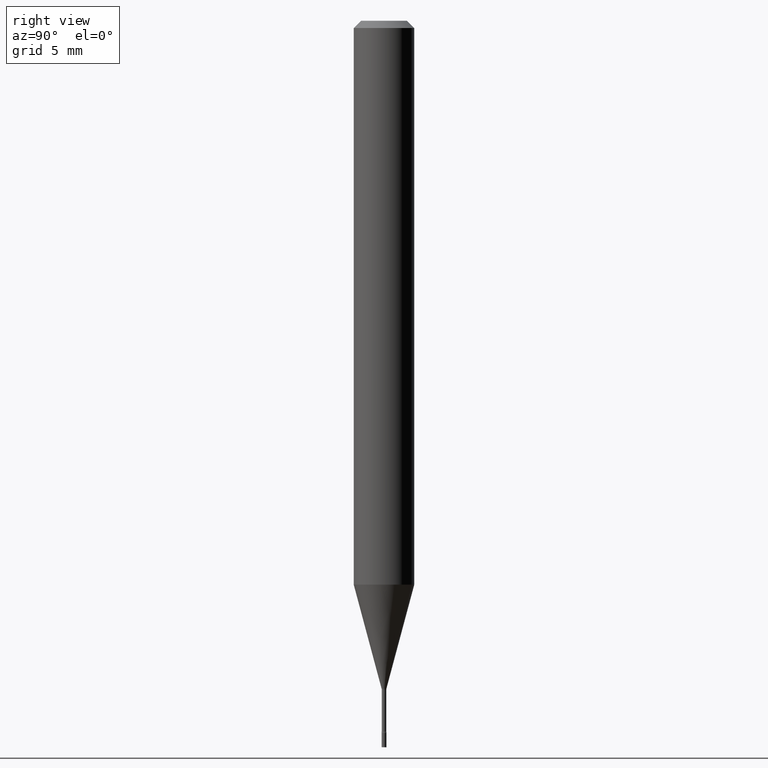
[diagram: clean part render]
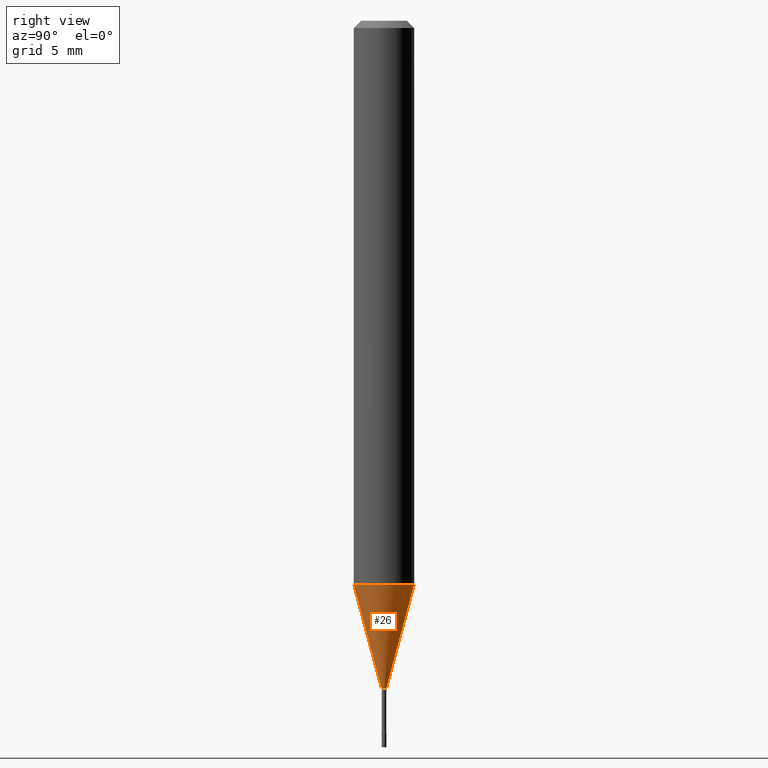
[diagram: same view with one face highlighted and labeled with its STEP entity id]
A machine part, right view. The second image highlights one B-rep face of the part: STEP entity #26.
In plain terms, the highlighted conical surface has half-angle 15 deg.
Its self-contained STEP definition (entity closure, byte-faithful):
#1 = VECTOR ( 'NONE', #65, 39.37007874015748143 ) ;
#3 = CARTESIAN_POINT ( 'NONE',  ( 3.367344808526216247E-29, -4.815504389611313492E-15, -1.378092501787273605 ) ) ;
#8 = CARTESIAN_POINT ( 'NONE',  ( -3.638900483453789669E-17, -0.005211112605668734299, -1.378092501787273605 ) ) ;
#9 = ORIENTED_EDGE ( 'NONE', *, *, #258, .T. ) ;
#10 = CIRCLE ( 'NONE', #306, 0.005211112605663917839 ) ;
#21 = CARTESIAN_POINT ( 'NONE',  ( 2.844915954601450546E-29, -4.068399895600381940E-15, -1.164287463322519312 ) ) ;
#26 = ADVANCED_FACE ( 'NONE', ( #407 ), #33, .T. ) ;
#33 = CONICAL_SURFACE ( 'NONE', #333, 0.005211112605663917839, 0.2617993877991496299 ) ;
#36 = DIRECTION ( 'NONE',  ( -6.982962677686266711E-15, -1.000000000000000000, 0.000000000000000000 ) ) ;
#40 = DIRECTION ( 'NONE',  ( -6.982962677686266711E-15, -1.000000000000000000, 0.000000000000000000 ) ) ;
#47 = DIRECTION ( 'NONE',  ( -1.807323732225325801E-15, -0.2588190451025175753, 0.9659258262890690894 ) ) ;
#49 = EDGE_CURVE ( 'NONE', #148, #202, #10, .T. ) ;
#56 = LINE ( 'NONE', #8, #127 ) ;
#65 = DIRECTION ( 'NONE',  ( 1.839019923739595977E-15, 0.2588190451025243477, 0.9659258262890673130 ) ) ;
#85 = EDGE_LOOP ( 'NONE', ( #481, #9, #345, #213 ) ) ;
#127 = VECTOR ( 'NONE', #47, 39.37007874015748854 ) ;
#137 = VERTEX_POINT ( 'NONE', #257 ) ;
#143 = DIRECTION ( 'NONE',  ( -6.982962677686265922E-15, -1.000000000000000000, 4.370956789862821150E-15 ) ) ;
#148 = VERTEX_POINT ( 'NONE', #234 ) ;
#158 = DIRECTION ( 'NONE',  ( -2.443482425279177286E-29, 3.494325949358259350E-15, 1.000000000000000000 ) ) ;
#180 = CARTESIAN_POINT ( 'NONE',  ( 3.702718207185751166E-17, 0.005211112605659102247, -1.378092501787273605 ) ) ;
#185 = LINE ( 'NONE', #180, #1 ) ;
#202 = VERTEX_POINT ( 'NONE', #391 ) ;
#213 = ORIENTED_EDGE ( 'NONE', *, *, #240, .F. ) ;
#234 = CARTESIAN_POINT ( 'NONE',  ( -3.638900483453789669E-17, -0.005211112605668734299, -1.378092501787273605 ) ) ;
#240 = EDGE_CURVE ( 'NONE', #148, #137, #56, .T. ) ;
#257 = CARTESIAN_POINT ( 'NONE',  ( -4.364351673553632704E-16, -0.06250000000000409395, -1.164287463322519089 ) ) ;
#258 = EDGE_CURVE ( 'NONE', #202, #324, #185, .T. ) ;
#269 = CARTESIAN_POINT ( 'NONE',  ( 4.440892098500909166E-16, 0.06249999999999592687, -1.164287463322519756 ) ) ;
#278 = DIRECTION ( 'NONE',  ( -2.443482425279177286E-29, 3.494325949358259350E-15, 1.000000000000000000 ) ) ;
#299 = CIRCLE ( 'NONE', #375, 0.06250000000000000000 ) ;
#306 = AXIS2_PLACEMENT_3D ( 'NONE', #3, #278, #36 ) ;
#322 = EDGE_CURVE ( 'NONE', #137, #324, #299, .T. ) ;
#324 = VERTEX_POINT ( 'NONE', #269 ) ;
#333 = AXIS2_PLACEMENT_3D ( 'NONE', #518, #158, #40 ) ;
#345 = ORIENTED_EDGE ( 'NONE', *, *, #322, .F. ) ;
#375 = AXIS2_PLACEMENT_3D ( 'NONE', #21, #396, #143 ) ;
#391 = CARTESIAN_POINT ( 'NONE',  ( 2.405581959609744668E-16, 0.005211112605659102247, -1.378092501787273605 ) ) ;
#396 = DIRECTION ( 'NONE',  ( -2.443482425279177286E-29, 3.494325949358259350E-15, 1.000000000000000000 ) ) ;
#407 = FACE_OUTER_BOUND ( 'NONE', #85, .T. ) ;
#481 = ORIENTED_EDGE ( 'NONE', *, *, #49, .T. ) ;
#518 = CARTESIAN_POINT ( 'NONE',  ( 3.367344808526216247E-29, -4.815504389611313492E-15, -1.378092501787273605 ) ) ;